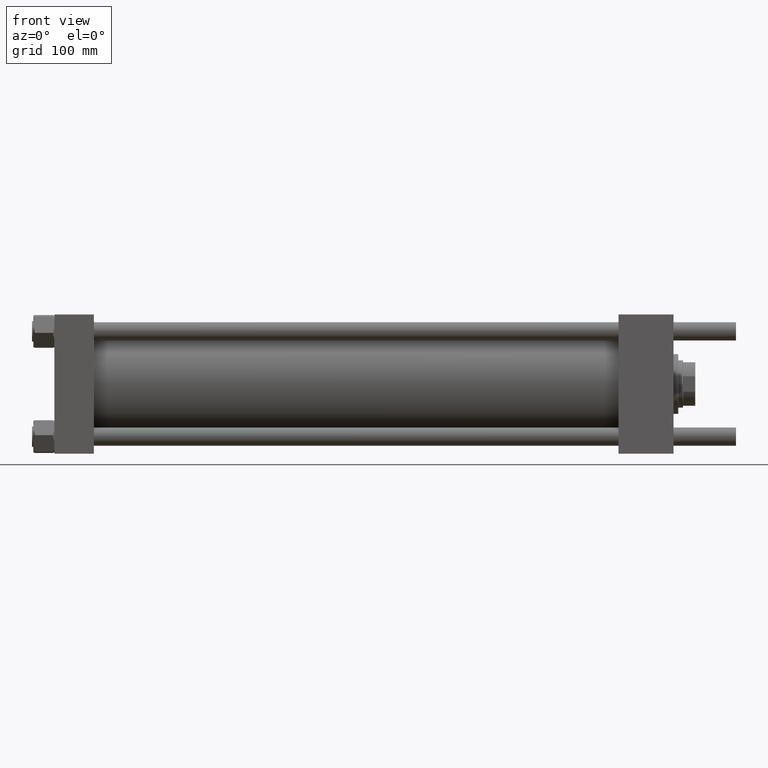
[diagram: clean part render]
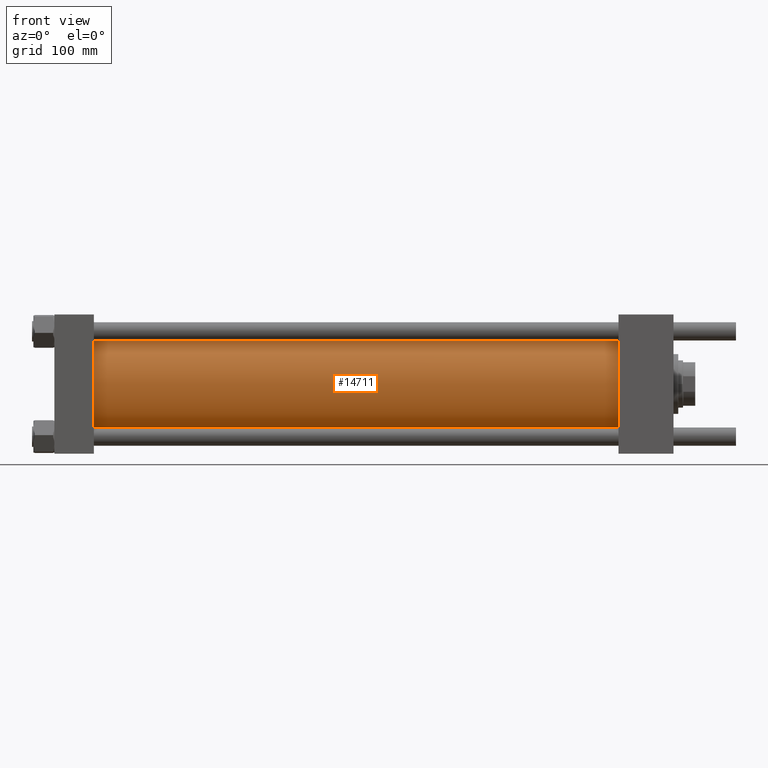
[diagram: same view with one face highlighted and labeled with its STEP entity id]
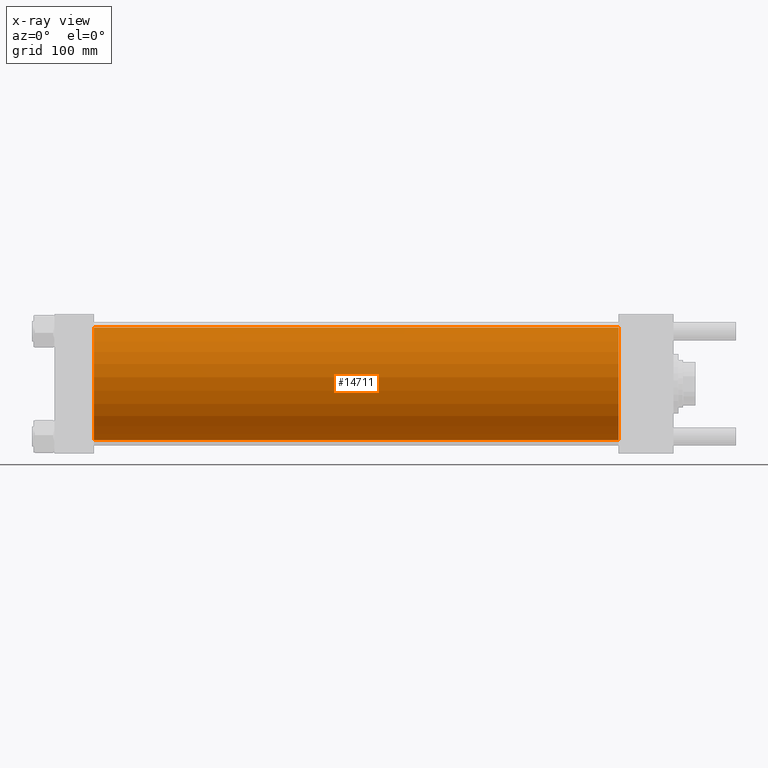
[diagram: x-ray of the same camera — body ghosted, the highlighted face saturated]
A machine part, front view. The second image highlights one B-rep face of the part: STEP entity #14711.
The next image is the same camera in x-ray: the body ghosted, the highlighted face saturated — about 0% of this face is hidden behind the body in this view.
In plain terms, the highlighted cylindrical surface (partial cylindrical patch) has radius 83 mm, axis along (-1, -0, -0).
Its self-contained STEP definition (entity closure, byte-faithful):
#1049 = CARTESIAN_POINT ( 'NONE',  ( 830.0000000000001137, -2.602085213965210642E-15, 0.000000000000000000 ) ) ;
#2037 = VERTEX_POINT ( 'NONE', #32485 ) ;
#2438 = ORIENTED_EDGE ( 'NONE', *, *, #7006, .T. ) ;
#3409 = CARTESIAN_POINT ( 'NONE',  ( 58.00000000000004974, 7.562483218957820855E-15, -83.00000000000000000 ) ) ;
#4064 = CARTESIAN_POINT ( 'NONE',  ( 830.0000000000001137, 7.562483218957820855E-15, -83.00000000000000000 ) ) ;
#4217 = EDGE_CURVE ( 'NONE', #36458, #57058, #34021, .T. ) ;
#5966 = EDGE_CURVE ( 'NONE', #2037, #36458, #35592, .T. ) ;
#6185 = VERTEX_POINT ( 'NONE', #41299 ) ;
#7006 = EDGE_CURVE ( 'NONE', #2037, #6185, #52378, .T. ) ;
#12116 = EDGE_CURVE ( 'NONE', #6185, #57058, #29250, .T. ) ;
#12347 = DIRECTION ( 'NONE',  ( 0.000000000000000000, 0.000000000000000000, 1.000000000000000000 ) ) ;
#13763 = DIRECTION ( 'NONE',  ( -1.000000000000000000, -0.000000000000000000, -0.000000000000000000 ) ) ;
#14711 = ADVANCED_FACE ( 'NONE', ( #33314 ), #37662, .T. ) ;
#15328 = DIRECTION ( 'NONE',  ( -1.000000000000000000, -0.000000000000000000, -0.000000000000000000 ) ) ;
#17225 = AXIS2_PLACEMENT_3D ( 'NONE', #47161, #34404, #12347 ) ;
#17230 = ORIENTED_EDGE ( 'NONE', *, *, #5966, .F. ) ;
#19047 = DIRECTION ( 'NONE',  ( 1.000000000000000000, 0.000000000000000000, 0.000000000000000000 ) ) ;
#19806 = VECTOR ( 'NONE', #13763, 1000.000000000000000 ) ;
#23536 = AXIS2_PLACEMENT_3D ( 'NONE', #1049, #19047, #36163 ) ;
#28035 = ORIENTED_EDGE ( 'NONE', *, *, #12116, .T. ) ;
#29250 = CIRCLE ( 'NONE', #17225, 83.00000000000000000 ) ;
#31971 = CARTESIAN_POINT ( 'NONE',  ( 830.0000000000001137, 7.562483218957820855E-15, -83.00000000000000000 ) ) ;
#32301 = EDGE_LOOP ( 'NONE', ( #56380, #17230, #2438, #28035 ) ) ;
#32485 = CARTESIAN_POINT ( 'NONE',  ( 830.0000000000001137, -2.602085213965210642E-15, 83.00000000000000000 ) ) ;
#33027 = DIRECTION ( 'NONE',  ( 0.000000000000000000, 0.000000000000000000, 1.000000000000000000 ) ) ;
#33314 = FACE_OUTER_BOUND ( 'NONE', #32301, .T. ) ;
#34021 = LINE ( 'NONE', #31971, #36422 ) ;
#34404 = DIRECTION ( 'NONE',  ( 1.000000000000000000, -0.000000000000000000, -0.000000000000000000 ) ) ;
#35592 = CIRCLE ( 'NONE', #23536, 83.00000000000000000 ) ;
#36163 = DIRECTION ( 'NONE',  ( 0.000000000000000000, 0.000000000000000000, -1.000000000000000000 ) ) ;
#36422 = VECTOR ( 'NONE', #44729, 1000.000000000000000 ) ;
#36458 = VERTEX_POINT ( 'NONE', #4064 ) ;
#37662 = CYLINDRICAL_SURFACE ( 'NONE', #44137, 83.00000000000000000 ) ;
#39888 = CARTESIAN_POINT ( 'NONE',  ( 830.0000000000001137, -2.602085213965210642E-15, 83.00000000000000000 ) ) ;
#41299 = CARTESIAN_POINT ( 'NONE',  ( 58.00000000000004974, -2.602085213965210642E-15, 83.00000000000000000 ) ) ;
#41729 = CARTESIAN_POINT ( 'NONE',  ( 830.0000000000001137, -2.602085213965210642E-15, 0.000000000000000000 ) ) ;
#44137 = AXIS2_PLACEMENT_3D ( 'NONE', #41729, #15328, #33027 ) ;
#44729 = DIRECTION ( 'NONE',  ( -1.000000000000000000, -0.000000000000000000, -0.000000000000000000 ) ) ;
#47161 = CARTESIAN_POINT ( 'NONE',  ( 58.00000000000004974, -2.602085213965210642E-15, 0.000000000000000000 ) ) ;
#52378 = LINE ( 'NONE', #39888, #19806 ) ;
#56380 = ORIENTED_EDGE ( 'NONE', *, *, #4217, .F. ) ;
#57058 = VERTEX_POINT ( 'NONE', #3409 ) ;